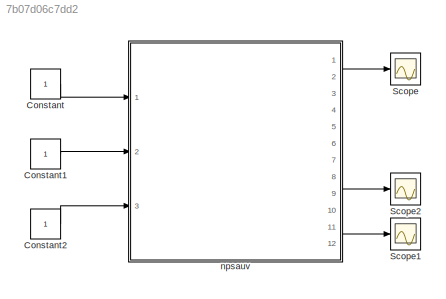
MODEL slx_7b07d06c7dd2
KIND model
CONFIG AbsTol = auto
CONFIG EnableMultiTasking = off
CONFIG FixedStep = 0.5
CONFIG MaxStep = auto
CONFIG MinStep = auto
CONFIG RelTol = 1e-3
CONFIG SampleTimeConstraint = Unconstrained
CONFIG Solver = VariableStepAuto
CONFIG SolverName = VariableStepAuto
CONFIG StartTime = 0.0
CONFIG StopTime = 300
BLOCK [Constant] Constant
BLOCK [Constant] Constant1
BLOCK [Constant] Constant2
BLOCK [Scope] Scope
  NumInputPorts = 1
  Ports = [1]
  ScopeSpecificationString = Simulink.scopes.TimeScopeBlockCfg('CurrentConfiguration', extmgr.ConfigurationSet(extmgr.Configuration('Core','General UI',true),extmgr.Configuration('Core','Source UI',true),extmgr.Configuration('Sources','WiredSimulink',true),extmgr.Configuration('Visuals','Time Domain',true,'SerializedDisplays',{struct('MinYLimReal','-0.13586','MaxYLimReal','1.22272','YLabelReal','','MinYLimMag','0.00000','MaxY...<+1378ch>
BLOCK [Scope] Scope1
  NumInputPorts = 1
  Ports = [1]
  ScopeSpecificationString = Simulink.scopes.TimeScopeBlockCfg('CurrentConfiguration', extmgr.ConfigurationSet(extmgr.Configuration('Core','General UI',true),extmgr.Configuration('Core','Source UI',true),extmgr.Configuration('Sources','WiredSimulink',true,'DataLoggingVariableName','ScopeData1'),extmgr.Configuration('Visuals','Time Domain',true,'SerializedDisplays',{struct('MinYLimReal','-0.125','MaxYLimReal','1.125','YLabelRe...<+1407ch>
BLOCK [Scope] Scope2
  NumInputPorts = 1
  Ports = [1]
  ScopeSpecificationString = Simulink.scopes.TimeScopeBlockCfg('CurrentConfiguration', extmgr.ConfigurationSet(extmgr.Configuration('Core','General UI',true),extmgr.Configuration('Core','Source UI',true),extmgr.Configuration('Sources','WiredSimulink',true,'DataLoggingVariableName','ScopeData2'),extmgr.Configuration('Visuals','Time Domain',true,'SerializedDisplays',{struct('MinYLimReal','-0.14199','MaxYLimReal','1.13461','YLab...<+1417ch>
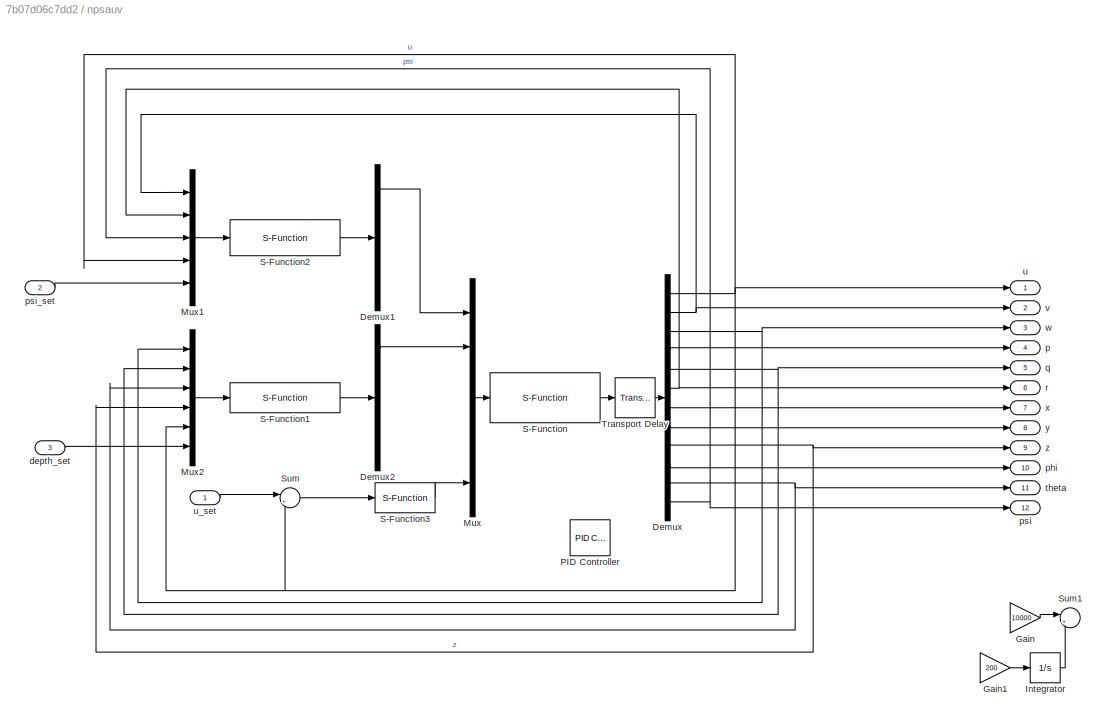
BLOCK [SubSystem] npsauv
  Ports = [3, 12]
  RequestExecContextInheritance = off
  Variant = off
BLOCK [Demux] npsauv/Demux
  DisplayOption = bar
  Outputs = 12
  Ports = [1, 12]
BLOCK [Demux] npsauv/Demux1
  DisplayOption = bar
  Outputs = 5
  Ports = [1, 5]
BLOCK [Demux] npsauv/Demux2
  DisplayOption = bar
  Outputs = 5
  Ports = [1, 5]
BLOCK [Gain] npsauv/Gain
  Gain = 10000
  OutDataTypeStr = Inherit: Inherit via internal rule
  ParamDataTypeStr = Inherit: Inherit via internal rule
  SaturateOnIntegerOverflow = off
BLOCK [Gain] npsauv/Gain1
  Gain = 200
  OutDataTypeStr = Inherit: Inherit via internal rule
  ParamDataTypeStr = Inherit: Inherit via internal rule
  SaturateOnIntegerOverflow = off
BLOCK [Integrator] npsauv/Integrator
  LimitOutput = on
  LowerSaturationLimit = -50
  Ports = [1, 1]
  UpperSaturationLimit = 50
BLOCK [Mux] npsauv/Mux
  DisplayOption = bar
  Inputs = 6
  Ports = [6, 1]
BLOCK [Mux] npsauv/Mux1
  DisplayOption = bar
  Inputs = 5
  Ports = [5, 1]
BLOCK [Mux] npsauv/Mux2
  DisplayOption = bar
  Inputs = 6
  Ports = [6, 1]
BLOCK [Reference] npsauv/PID Controller  REF=simulink/Continuous/PID Controller
  Ports = [1, 1]
  SourceBlock = simulink/Continuous/PID Controller
  SourceProductBaseCode = SL
  SourceProductName = Simulink
  SourceType = PID 1dof
BLOCK [S-Function] npsauv/S-Function
  EnableBusSupport = off
  FunctionName = s_npsauv_model
  Parameters = x_init
  Ports = [1, 1]
  SFcnIsStateOwnerBlock = off
  SFunctionDeploymentMode = off
BLOCK [S-Function] npsauv/S-Function1
  EnableBusSupport = off
  FunctionName = s_mpc_controller_depth
  Ports = [1, 1]
  SFcnIsStateOwnerBlock = off
  SFunctionDeploymentMode = off
BLOCK [S-Function] npsauv/S-Function2
  EnableBusSupport = off
  FunctionName = s_mpc_controller_psi
  Ports = [1, 1]
  SFcnIsStateOwnerBlock = off
  SFunctionDeploymentMode = off
BLOCK [S-Function] npsauv/S-Function3
  EnableBusSupport = off
  FunctionName = s_pid_controller_u
  Ports = [1, 1]
  SFcnIsStateOwnerBlock = off
  SFunctionDeploymentMode = off
BLOCK [Sum] npsauv/Sum
  IconShape = round
  InputSameDT = off
  Inputs = |+-
  OutDataTypeStr = Inherit: Inherit via internal rule
  Ports = [2, 1]
  SaturateOnIntegerOverflow = off
BLOCK [Sum] npsauv/Sum1
  IconShape = round
  InputSameDT = off
  Inputs = |++
  OutDataTypeStr = Inherit: Inherit via internal rule
  Ports = [2, 1]
  SaturateOnIntegerOverflow = off
BLOCK [TransportDelay] npsauv/Transport Delay
  DelayTime = 0.01
  Ports = [1, 1]
BLOCK [Inport] npsauv/depth_set
  IconDisplay = Port number
  Port = 3
BLOCK [Outport] npsauv/p
  IconDisplay = Port number
  Port = 4
BLOCK [Outport] npsauv/phi
  IconDisplay = Port number
  Port = 10
BLOCK [Outport] npsauv/psi
  IconDisplay = Port number
  Port = 12
BLOCK [Inport] npsauv/psi_set
  IconDisplay = Port number
  Port = 2
BLOCK [Outport] npsauv/q
  IconDisplay = Port number
  Port = 5
BLOCK [Outport] npsauv/r
  IconDisplay = Port number
  Port = 6
BLOCK [Outport] npsauv/theta
  IconDisplay = Port number
  Port = 11
BLOCK [Outport] npsauv/u
  IconDisplay = Port number
BLOCK [Inport] npsauv/u_set
  IconDisplay = Port number
BLOCK [Outport] npsauv/v
  IconDisplay = Port number
  Port = 2
BLOCK [Outport] npsauv/w
  IconDisplay = Port number
  Port = 3
BLOCK [Outport] npsauv/x
  IconDisplay = Port number
  Port = 7
BLOCK [Outport] npsauv/y
  IconDisplay = Port number
  Port = 8
BLOCK [Outport] npsauv/z
  IconDisplay = Port number
  Port = 9
LINE Constant1:1 -> npsauv:2
LINE Constant2:1 -> npsauv:3
LINE Constant:1 -> npsauv:1
LINE npsauv/Demux1:1 -> npsauv/Mux:1
LINE npsauv/Demux2:1 -> npsauv/Mux:2
NET npsauv/Demux:1 -> npsauv/Mux1:4, npsauv/Mux2:5, npsauv/Sum:2, npsauv/u:1
LINE npsauv/Demux:10 -> npsauv/phi:1
NET npsauv/Demux:11 -> npsauv/Mux2:3, npsauv/theta:1
NET npsauv/Demux:12 -> npsauv/Mux1:3, npsauv/psi:1
NET npsauv/Demux:2 -> npsauv/Mux1:1, npsauv/v:1
NET npsauv/Demux:3 -> npsauv/Mux2:1, npsauv/w:1
LINE npsauv/Demux:4 -> npsauv/p:1
NET npsauv/Demux:5 -> npsauv/Mux2:2, npsauv/q:1
NET npsauv/Demux:6 -> npsauv/Mux1:2, npsauv/r:1
LINE npsauv/Demux:7 -> npsauv/x:1
LINE npsauv/Demux:8 -> npsauv/y:1
NET npsauv/Demux:9 -> npsauv/Mux2:4, npsauv/z:1
LINE npsauv/Gain1:1 -> npsauv/Integrator:1
LINE npsauv/Gain:1 -> npsauv/Sum1:1
LINE npsauv/Integrator:1 -> npsauv/Sum1:2
LINE npsauv/Mux1:1 -> npsauv/S-Function2:1
LINE npsauv/Mux2:1 -> npsauv/S-Function1:1
LINE npsauv/Mux:1 -> npsauv/S-Function:1
LINE npsauv/S-Function1:1 -> npsauv/Demux2:1
LINE npsauv/S-Function2:1 -> npsauv/Demux1:1
LINE npsauv/S-Function3:1 -> npsauv/Mux:6
LINE npsauv/S-Function:1 -> npsauv/Transport Delay:1
LINE npsauv/Sum:1 -> npsauv/S-Function3:1
LINE npsauv/Transport Delay:1 -> npsauv/Demux:1
LINE npsauv/depth_set:1 -> npsauv/Mux2:6
LINE npsauv/psi_set:1 -> npsauv/Mux1:5
LINE npsauv/u_set:1 -> npsauv/Sum:1
LINE npsauv:1 -> Scope:1
LINE npsauv:12 -> Scope1:1
LINE npsauv:9 -> Scope2:1
note: NET lines group one-source signal fan-out (src -> all destinations, sorted); 1:1 wires keep LINE
